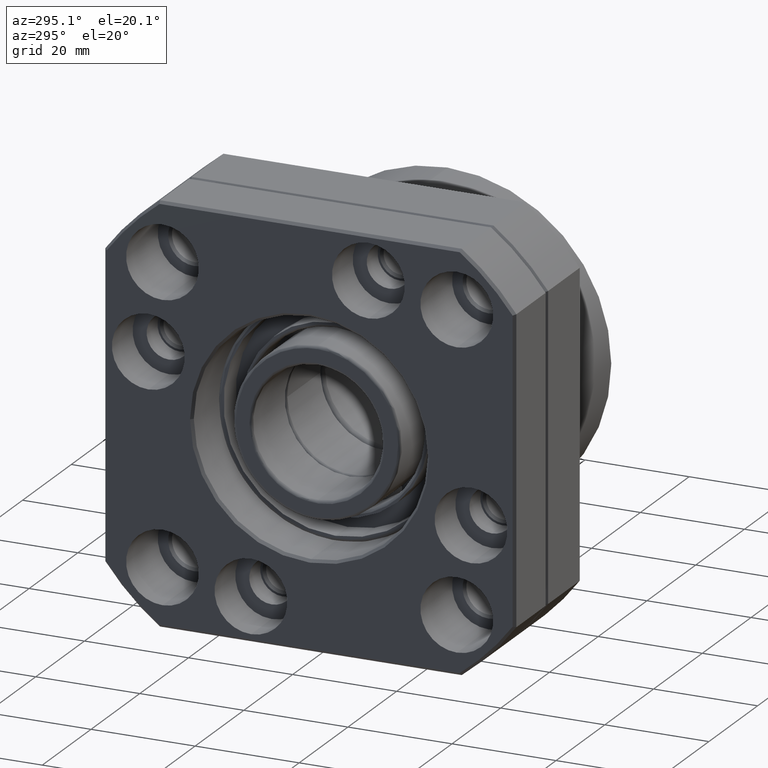
[diagram: clean part render]
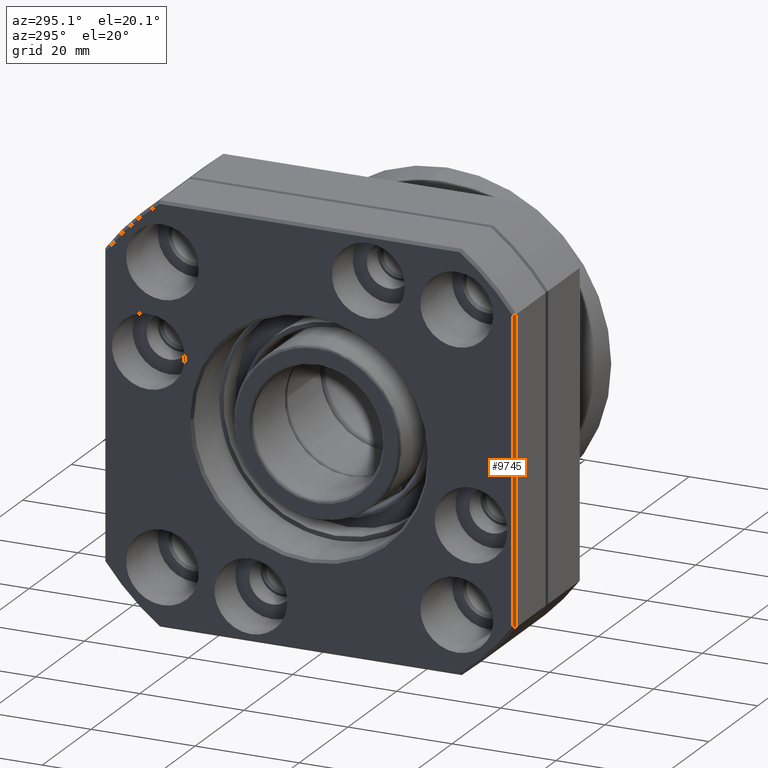
[diagram: same view with one face highlighted and labeled with its STEP entity id]
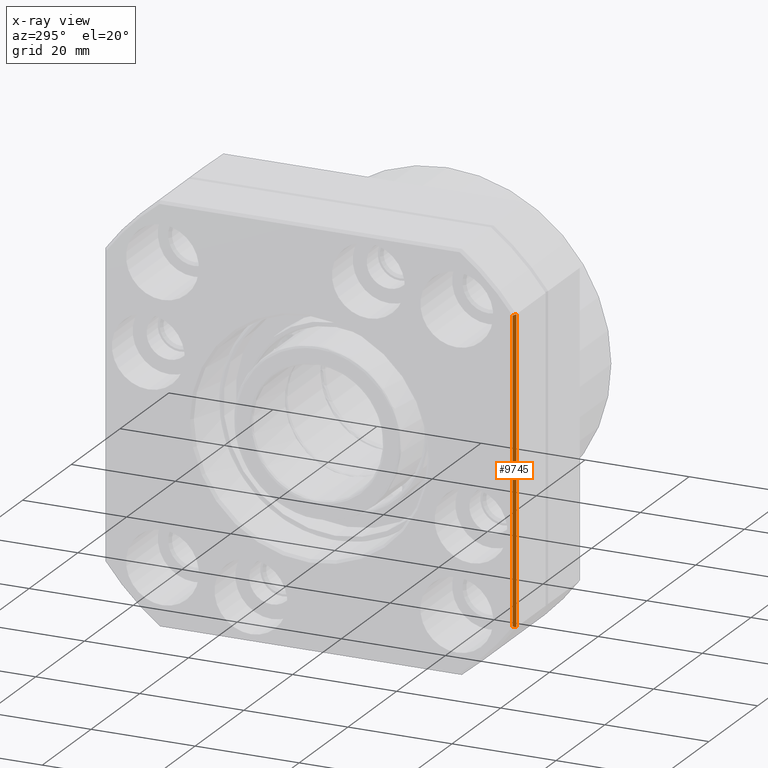
[diagram: x-ray of the same camera — body ghosted, the highlighted face saturated]
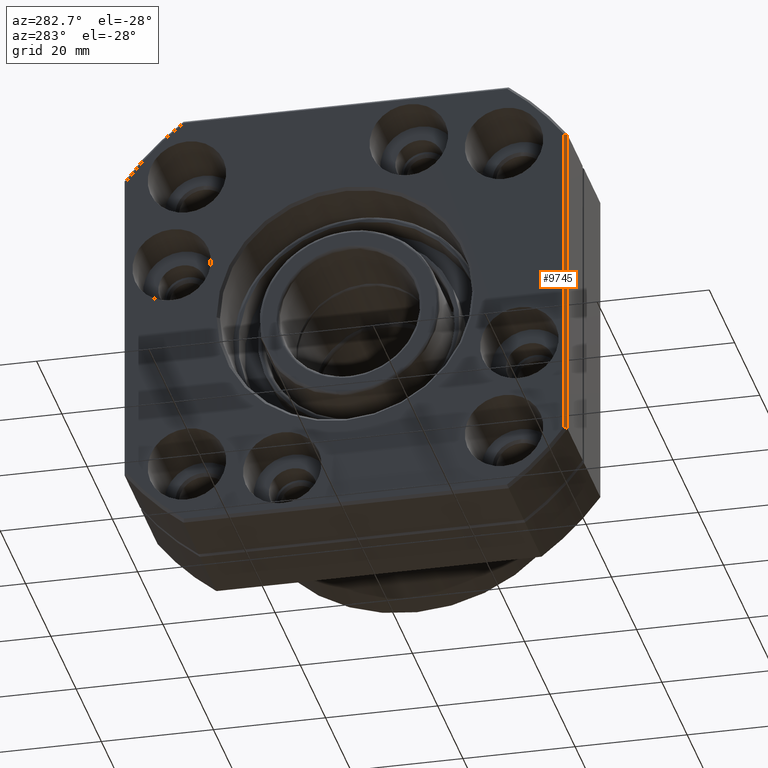
[diagram: same view with one face highlighted and labeled with its STEP entity id]
A machine part, auxiliary view. The second image highlights one B-rep face of the part: STEP entity #9745.
The next image is the same camera in x-ray: the body ghosted, the highlighted face saturated — about 0% of this face is hidden behind the body in this view.
A second angle (auxiliary view) of the same face is appended — the face is thin or edge-on in the first view.
In plain terms, the highlighted planar face has unit normal (-0.7071, -0.7071, -0).
Its self-contained STEP definition (entity closure, byte-faithful):
#596 = DIRECTION ( 'NONE',  ( 0.7071067811865474600, -0.7071067811865474600, 0.0000000000000000000 ) ) ;
#765 = CARTESIAN_POINT ( 'NONE',  ( -12.99999999999999800, -38.99999999999997200, -28.83140648667697900 ) ) ;
#800 = B_SPLINE_CURVE_WITH_KNOTS ( 'NONE', 3,
 ( #5647, #8511, #4696, #11427 ),
 .UNSPECIFIED., .F., .F.,
 ( 4, 4 ),
 ( 1.734723475976807100E-018, 0.0007259399797408514800 ),
 .UNSPECIFIED. ) ;
#1195 = LINE ( 'NONE', #1577, #11611 ) ;
#1577 = CARTESIAN_POINT ( 'NONE',  ( -12.99999999999999800, -38.99999999999997900, 8.162034727565945800E-015 ) ) ;
#1625 = ORIENTED_EDGE ( 'NONE', *, *, #3477, .T. ) ;
#3477 = EDGE_CURVE ( 'NONE', #5511, #9917, #7207, .T. ) ;
#4172 = LINE ( 'NONE', #8256, #11265 ) ;
#4197 = ORIENTED_EDGE ( 'NONE', *, *, #9124, .T. ) ;
#4696 = CARTESIAN_POINT ( 'NONE',  ( -12.66669081790244400, -39.33330918209753000, -28.94107560405174700 ) ) ;
#5511 = VERTEX_POINT ( 'NONE', #8262 ) ;
#5647 = CARTESIAN_POINT ( 'NONE',  ( -12.99999999999999800, -38.99999999999997200, -28.83140648667697900 ) ) ;
#6108 = EDGE_CURVE ( 'NONE', #9917, #8306, #1195, .T. ) ;
#6140 = AXIS2_PLACEMENT_3D ( 'NONE', #10378, #6606, #596 ) ;
#6291 = CARTESIAN_POINT ( 'NONE',  ( -12.49999999999997000, -39.50000000000000700, -28.99568933479596600 ) ) ;
#6606 = DIRECTION ( 'NONE',  ( -0.7071067811865475700, -0.7071067811865475700, -1.570092458683775900E-016 ) ) ;
#6754 = DIRECTION ( 'NONE',  ( 0.0000000000000000000, 0.0000000000000000000, -1.000000000000000000 ) ) ;
#6921 = VERTEX_POINT ( 'NONE', #6291 ) ;
#7207 = B_SPLINE_CURVE_WITH_KNOTS ( 'NONE', 3,
 ( #10028, #10275, #10057, #10015 ),
 .UNSPECIFIED., .F., .F.,
 ( 4, 4 ),
 ( 8.673617379884035500E-018, 0.0007259399797408455200 ),
 .UNSPECIFIED. ) ;
#7327 = EDGE_CURVE ( 'NONE', #6921, #5511, #4172, .T. ) ;
#8256 = CARTESIAN_POINT ( 'NONE',  ( -12.49999999999998400, -39.50000000000000000, -5.493708475323455200E-015 ) ) ;
#8262 = CARTESIAN_POINT ( 'NONE',  ( -12.49999999999998400, -39.50000000000000700, 28.99568933479596900 ) ) ;
#8306 = VERTEX_POINT ( 'NONE', #765 ) ;
#8511 = CARTESIAN_POINT ( 'NONE',  ( -12.83335768065590300, -39.16664231934406400, -28.88631542892718700 ) ) ;
#8745 = EDGE_LOOP ( 'NONE', ( #1625, #11461, #4197, #9970 ) ) ;
#9124 = EDGE_CURVE ( 'NONE', #8306, #6921, #800, .T. ) ;
#9202 = DIRECTION ( 'NONE',  ( -1.110223024625155800E-016, -1.110223024625156300E-016, 1.000000000000000000 ) ) ;
#9745 = ADVANCED_FACE ( 'NONE', ( #10490 ), #12321, .T. ) ;
#9917 = VERTEX_POINT ( 'NONE', #9963 ) ;
#9963 = CARTESIAN_POINT ( 'NONE',  ( -12.99999999999999800, -38.99999999999997900, 28.83140648667698300 ) ) ;
#9970 = ORIENTED_EDGE ( 'NONE', *, *, #7327, .T. ) ;
#10015 = CARTESIAN_POINT ( 'NONE',  ( -12.99999999999999800, -38.99999999999997900, 28.83140648667698300 ) ) ;
#10028 = CARTESIAN_POINT ( 'NONE',  ( -12.49999999999998400, -39.50000000000000700, 28.99568933479596900 ) ) ;
#10057 = CARTESIAN_POINT ( 'NONE',  ( -12.83335768065590300, -39.16664231934407100, 28.88631542892717600 ) ) ;
#10275 = CARTESIAN_POINT ( 'NONE',  ( -12.66669081790244400, -39.33330918209753700, 28.94107560405174000 ) ) ;
#10378 = CARTESIAN_POINT ( 'NONE',  ( -12.99999999999999800, -38.99999999999997200, -5.493708475323455200E-015 ) ) ;
#10490 = FACE_OUTER_BOUND ( 'NONE', #8745, .T. ) ;
#11265 = VECTOR ( 'NONE', #9202, 1000.000000000000000 ) ;
#11427 = CARTESIAN_POINT ( 'NONE',  ( -12.49999999999997000, -39.50000000000000700, -28.99568933479596600 ) ) ;
#11461 = ORIENTED_EDGE ( 'NONE', *, *, #6108, .T. ) ;
#11611 = VECTOR ( 'NONE', #6754, 1000.000000000000000 ) ;
#12321 = PLANE ( 'NONE',  #6140 ) ;